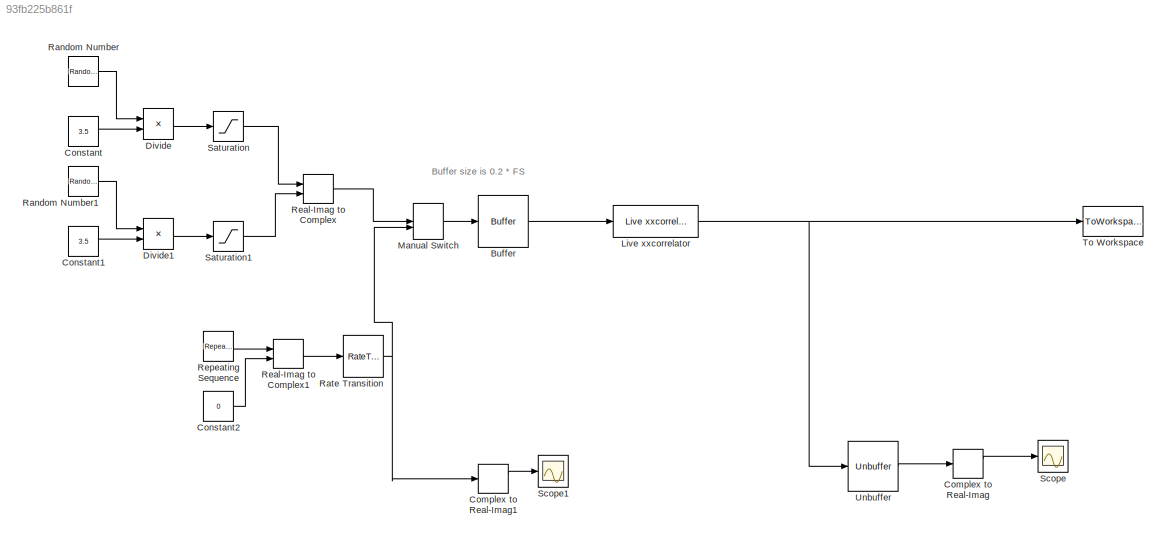
MODEL slx_93fb225b861f
KIND model
BLOCK [Buffer] Buffer
  N = 25000
  TreatMby1Signals = One channel
  ic = 11
BLOCK [ComplexToRealImag] Complex to Real-Imag
  Commented = on
  Ports = [1, 2]
BLOCK [ComplexToRealImag] Complex to Real-Imag1
  Ports = [1, 2]
BLOCK [Constant] Constant
  Value = 3.5
BLOCK [Constant] Constant1
  Value = 3.5
BLOCK [Constant] Constant2
  Value = 0
BLOCK [Product] Divide
  InputSameDT = off
  Inputs = */
  OutDataTypeStr = Inherit: Inherit via internal rule
  Ports = [2, 1]
  RndMeth = Floor
  SaturateOnIntegerOverflow = off
BLOCK [Product] Divide1
  InputSameDT = off
  Inputs = */
  OutDataTypeStr = Inherit: Inherit via internal rule
  Ports = [2, 1]
  RndMeth = Floor
  SaturateOnIntegerOverflow = off
BLOCK [Reference] Live xxcorrelator  REF=siglabs_lib/Live xxcorrelator
  Ports = [1, 1]
  SourceBlock = siglabs_lib/Live xxcorrelator
  samps_per_second = 125000
BLOCK [ManualSwitch] Manual Switch
BLOCK [RandomNumber] Random Number
  SampleTime = 1/125000
BLOCK [RandomNumber] Random Number1
  SampleTime = 1/125000
BLOCK [RateTransition] Rate Transition
  OutPortSampleTime = 1/125000
BLOCK [RealImagToComplex] Real-Imag to Complex
  Ports = [2, 1]
BLOCK [RealImagToComplex] Real-Imag to Complex1
  Ports = [2, 1]
BLOCK [Reference] Repeating Sequence  REF=simulink/Sources/Repeating
Sequence
  Ports = [0, 1]
  SourceBlock = simulink/Sources/Repeating\nSequence
  SourceType = Repeating table
  rep_seq_t = 0.1*3:0.1*3:1*3
  rep_seq_y = 1:10
BLOCK [Saturate] Saturation
  InputPortMap = u0
  LowerLimit = -1
  Ports = [1, 1]
  UpperLimit = 1
BLOCK [Saturate] Saturation1
  InputPortMap = u0
  LowerLimit = -1
  Ports = [1, 1]
  UpperLimit = 1
BLOCK [Scope] Scope
  Commented = on
  Floating = off
  LimitDataPoints = off
  NumInputPorts = 1
  Ports = [1]
  ShowLegends = off
  YMax = 1
  YMin = -1
  ZoomMode = yonly
BLOCK [Scope] Scope1
  Floating = off
  LimitDataPoints = off
  NumInputPorts = 1
  Ports = [1]
  SaveName = ScopeData1
  ShowLegends = off
  YMax = 10
  YMin = 0
BLOCK [ToWorkspace] To Workspace
  FixptAsFi = on
  MaxDataPoints = inf
  Ports = [1]
  SampleTime = -1
  Save2DSignal = 2-D array (concatenate along first dimension)
  VariableName = simout
BLOCK [Unbuffer] Unbuffer
  Commented = on
  Ports = [1, 1]
  SampleBasedProcessing = Same as frame based
ANNOTATION (root): Buffer size is 0.2 * FS
LINE Buffer:1 -> Live xxcorrelator:1
LINE Complex to Real-Imag1:1 -> Scope1:1
LINE Complex to Real-Imag:1 -> Scope:1
LINE Constant1:1 -> Divide1:2
LINE Constant2:1 -> Real-Imag to Complex1:2
LINE Constant:1 -> Divide:2
LINE Divide1:1 -> Saturation1:1
LINE Divide:1 -> Saturation:1
NET Live xxcorrelator:1 -> To Workspace:1, Unbuffer:1
LINE Manual Switch:1 -> Buffer:1
LINE Random Number1:1 -> Divide1:1
LINE Random Number:1 -> Divide:1
NET Rate Transition:1 -> Complex to Real-Imag1:1, Manual Switch:2
LINE Real-Imag to Complex1:1 -> Rate Transition:1
LINE Real-Imag to Complex:1 -> Manual Switch:1
LINE Repeating Sequence:1 -> Real-Imag to Complex1:1
LINE Saturation1:1 -> Real-Imag to Complex:2
LINE Saturation:1 -> Real-Imag to Complex:1
LINE Unbuffer:1 -> Complex to Real-Imag:1
note: NET lines group one-source signal fan-out (src -> all destinations, sorted); 1:1 wires keep LINE
